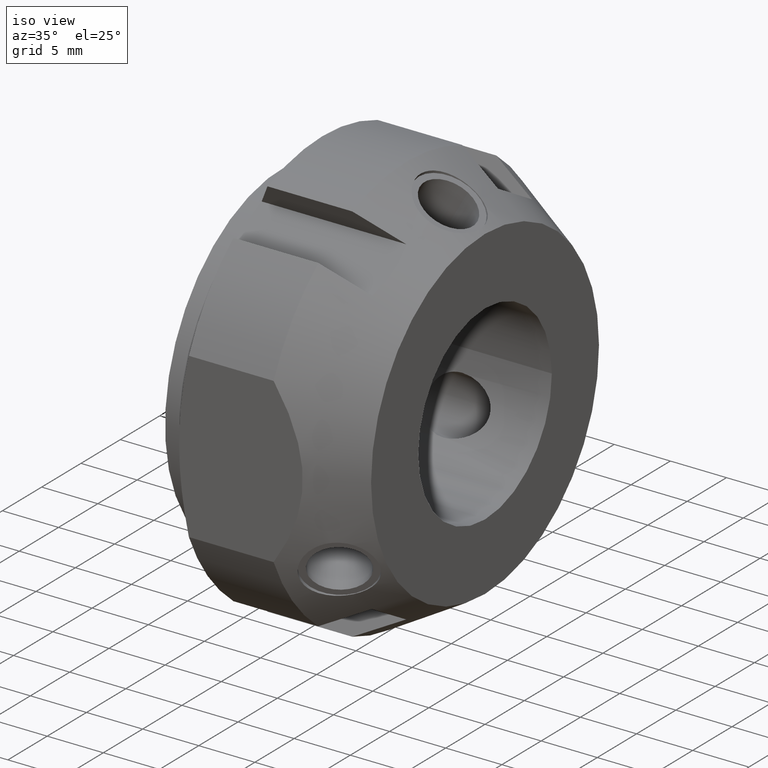
[diagram: clean part render]
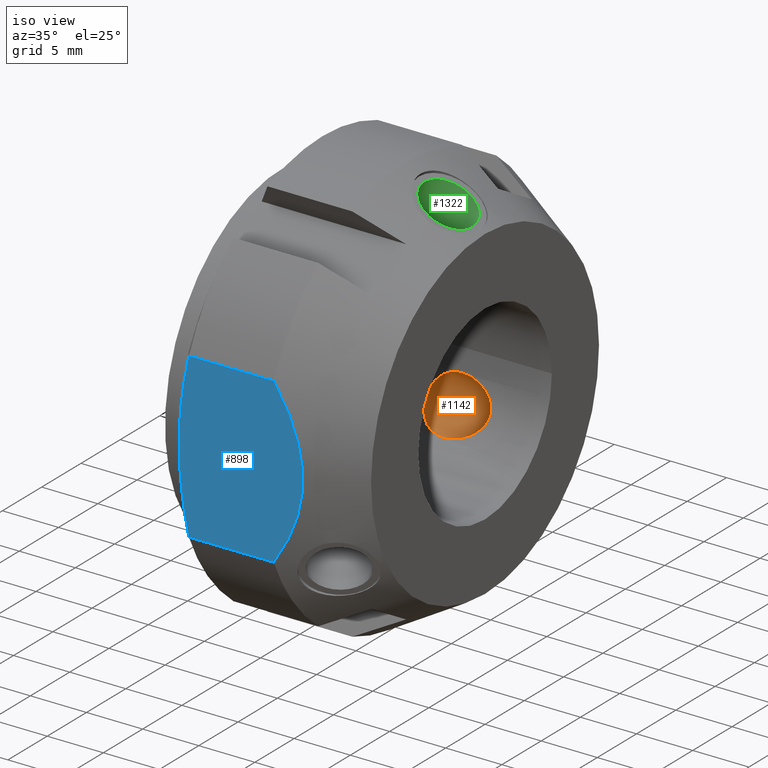
[diagram: same view with three faces highlighted in distinct colors, each labeled with its STEP entity id]
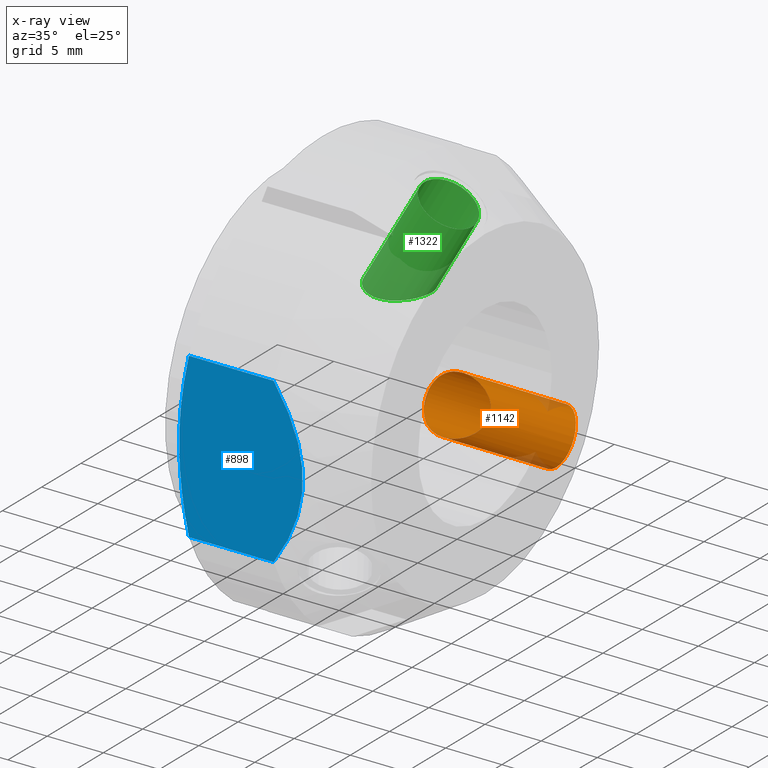
[diagram: x-ray of the same camera — body ghosted, the three highlighted faces saturated]
A machine part, iso view with three faces highlighted in distinct colors.
The next image is the same camera in x-ray (body ghosted, the three faces saturated) — at least one of them is partly hidden behind the body in this view.
Their STEP definitions:

[orange] entity #1142 — the highlighted cylindrical surface (bore or boss wall) has radius 2.4585 mm, axis along (0.5, 0.75, -0.433).
#1085=CARTESIAN_POINT('',(11.000000000000004,8.249999999999993,-4.763139720814413));
#1086=DIRECTION('',(0.500000000000001,0.75,-0.43301270189222));
#1087=DIRECTION('',(0.0,-0.5,-0.866025403784438));
#1088=AXIS2_PLACEMENT_3D('',#1085,#1086,#1087);
#1089=CYLINDRICAL_SURFACE('',#1088,2.458500000000001);
#1090=CARTESIAN_POINT('',(10.19772206322739,8.275833094841072,-1.939223191469521));
#1091=VERTEX_POINT('',#1090);
#1092=CARTESIAN_POINT('',(10.19772206322739,8.275833094841072,-1.939223191469521));
#1093=CARTESIAN_POINT('',(10.566782521427259,8.275833094841072,-1.939223191469521));
#1094=CARTESIAN_POINT('',(10.962081600355233,8.261028061994626,-2.005786967910295));
#1095=CARTESIAN_POINT('',(11.705961786118131,8.194076013932852,-2.263820724887133));
#1096=CARTESIAN_POINT('',(12.054709614364935,8.141230499570881,-2.454627902786858));
#1097=CARTESIAN_POINT('',(12.591244179149413,8.002528275847308,-2.872644468010111));
#1098=CARTESIAN_POINT('',(12.827707342353129,7.911826543730901,-3.121261528164622));
#1099=CARTESIAN_POINT('',(13.155873423945275,7.673136372763904,-3.669094198267247));
#1100=CARTESIAN_POINT('',(13.246308561717218,7.523761161316926,-3.968463404585669));
#1101=CARTESIAN_POINT('',(13.246308561717218,7.19867070301853,-4.531536595414341));
#1102=CARTESIAN_POINT('',(13.155873423945275,7.014096970959481,-4.810583926382305));
#1103=CARTESIAN_POINT('',(12.827707342353129,6.659005047111046,-5.29121201312469));
#1104=CARTESIAN_POINT('',(12.591244179149408,6.48904722326124,-5.494070547382002));
#1105=CARTESIAN_POINT('',(12.054709614364931,6.196385370436975,-5.823198479299635));
#1106=CARTESIAN_POINT('',(11.705961786118127,6.05756426433238,-5.964367626163021));
#1107=CARTESIAN_POINT('',(10.962081600355232,5.867576499787387,-6.151366679108332));
#1108=CARTESIAN_POINT('',(10.566782521427257,5.817333094841071,-6.197470101877607));
#1109=CARTESIAN_POINT('',(9.862931160561764,5.817333094841071,-6.197470101877607));
#1110=CARTESIAN_POINT('',(9.502410419975307,5.859572380618651,-6.15885675758594));
#1111=CARTESIAN_POINT('',(8.838116746098452,6.04082120746998,-5.981185764934129));
#1112=CARTESIAN_POINT('',(8.534553208944381,6.179572090433652,-5.841083031686245));
#1113=CARTESIAN_POINT('',(8.074640827506679,6.482428298801699,-5.502373639010703));
#1114=CARTESIAN_POINT('',(7.883280674191791,6.661278530855573,-5.288703724856601));
#1115=CARTESIAN_POINT('',(7.630536168855691,7.023189669213198,-4.797689588974992));
#1116=CARTESIAN_POINT('',(7.568646014506434,7.205360190837078,-4.519950062636005));
#1117=CARTESIAN_POINT('',(7.568646014506434,7.517071673498379,-3.980049937364004));
#1118=CARTESIAN_POINT('',(7.630536168855691,7.666515898131062,-3.683415874647569));
#1119=CARTESIAN_POINT('',(7.883280674191791,7.910791044242988,-3.124484566976518));
#1120=CARTESIAN_POINT('',(8.074640827506679,8.006409501897942,-2.862760765468071));
#1121=CARTESIAN_POINT('',(8.534553208944381,8.148312336271337,-2.431124898989737));
#1122=CARTESIAN_POINT('',(8.83811674609845,8.200269420921805,-2.240911742921734));
#1123=CARTESIAN_POINT('',(9.502410419975309,8.263512600648207,-1.99511015813645));
#1124=CARTESIAN_POINT('',(9.862931160561764,8.275833094841072,-1.939223191469521));
#1125=CARTESIAN_POINT('',(10.197722063227388,8.275833094841072,-1.939223191469521));
#1126=B_SPLINE_CURVE_WITH_KNOTS('',3,(#1092,#1093,#1094,#1095,#1096,#1097,#1098,#1099,#1100,#1101,#1102,#1103,#1104,#1105,#1106,#1107,#1108,#1109,#1110,#1111,#1112,#1113,#1114,#1115,#1116,#1117,#1118,#1119,#1120,#1121,#1122,#1123,#1124,#1125),.UNSPECIFIED.,.T.,.U.,(4,2,2,2,2,2,2,2,2,2,2,2,2,2,2,2,4),(0.0,0.11071813745996,0.22143627491992,0.318963412409439,0.416490549898958,0.514017687388476,0.611544824877995,0.722262962337955,0.832981099797915,0.933418370597602,1.033855641397288,1.127369086195679,1.22088253099407,1.31439597579246,1.407909420590851,1.508346691390538,1.608783962190225),.UNSPECIFIED.);
#1127=EDGE_CURVE('',#1091,#1091,#1126,.T.);
#1128=ORIENTED_EDGE('',*,*,#1127,.F.);
#1129=EDGE_LOOP('',(#1128));
#1130=FACE_OUTER_BOUND('',#1129,.T.);
#1131=CARTESIAN_POINT('',(14.750000000000007,12.645749999999989,-10.139858440210103));
#1132=VERTEX_POINT('',#1131);
#1133=CARTESIAN_POINT('',(14.750000000000007,13.874999999999989,-8.010734985006062));
#1134=DIRECTION('',(0.5,0.75,-0.43301270189222));
#1135=DIRECTION('',(0.0,-0.5,-0.866025403784438));
#1136=AXIS2_PLACEMENT_3D('',#1133,#1134,#1135);
#1137=CIRCLE('',#1136,2.458500000000001);
#1138=EDGE_CURVE('',#1132,#1132,#1137,.T.);
#1139=ORIENTED_EDGE('',*,*,#1138,.T.);
#1140=EDGE_LOOP('',(#1139));
#1141=FACE_BOUND('',#1140,.T.);
#1142=ADVANCED_FACE('',(#1130,#1141),#1089,.F.);

[blue] entity #898 — the highlighted planar face has unit normal (0, 1, 0).
#385=CARTESIAN_POINT('',(3.520725942163683,-17.000000000000043,-7.29725975966311));
#386=VERTEX_POINT('',#385);
#394=CARTESIAN_POINT('',(3.520725942163683,-17.000000000000046,7.297259759663092));
#395=VERTEX_POINT('',#394);
#396=CARTESIAN_POINT('',(3.520725942163682,-17.000000000000043,-7.297259759663106));
#397=CARTESIAN_POINT('',(1.858893410577381,-17.000000000000046,-5.596456E-015));
#398=CARTESIAN_POINT('',(3.520725942163683,-17.00000000000005,7.297259759663097));
#406=(BOUNDED_CURVE()B_SPLINE_CURVE(2,(#396,#397,#398),.UNSPECIFIED.,.F.,.U.)B_SPLINE_CURVE_WITH_KNOTS((3,3),(0.0,1.469693845669884),.UNSPECIFIED.)CURVE()GEOMETRIC_REPRESENTATION_ITEM()RATIONAL_B_SPLINE_CURVE((1.0,1.088235294117642,1.0))REPRESENTATION_ITEM(''));
#407=EDGE_CURVE('',#386,#395,#406,.T.);
#575=CARTESIAN_POINT('',(11.071796769724482,-17.000000000000043,-7.297259759663116));
#576=VERTEX_POINT('',#575);
#584=CARTESIAN_POINT('',(11.071796769724482,-17.000000000000043,-7.29725975966311));
#585=DIRECTION('',(-1.0,0.0,0.0));
#586=VECTOR('',#585,7.5510708275608);
#587=LINE('',#584,#586);
#588=EDGE_CURVE('',#576,#386,#587,.T.);
#826=CARTESIAN_POINT('',(11.071796769724482,-17.000000000000046,7.297259759663098));
#827=VERTEX_POINT('',#826);
#828=CARTESIAN_POINT('',(3.520725942163683,-17.000000000000046,7.297259759663092));
#829=DIRECTION('',(1.0,0.0,0.0));
#830=VECTOR('',#829,7.5510708275608);
#831=LINE('',#828,#830);
#832=EDGE_CURVE('',#395,#827,#831,.T.);
#875=CARTESIAN_POINT('',(0.0,-17.0,-100.0));
#876=DIRECTION('',(0.0,1.0,0.0));
#877=DIRECTION('',(0.0,0.0,1.0));
#878=AXIS2_PLACEMENT_3D('',#875,#876,#877);
#879=PLANE('',#878);
#880=ORIENTED_EDGE('',*,*,#407,.F.);
#881=ORIENTED_EDGE('',*,*,#588,.F.);
#882=CARTESIAN_POINT('',(11.071796769724482,-17.000000000000046,7.297259759663099));
#883=CARTESIAN_POINT('',(16.057294364483408,-17.000000000000043,-2.246655E-015));
#884=CARTESIAN_POINT('',(11.071796769724482,-17.000000000000043,-7.29725975966311));
#892=(BOUNDED_CURVE()B_SPLINE_CURVE(2,(#882,#883,#884),.UNSPECIFIED.,.F.,.U.)B_SPLINE_CURVE_WITH_KNOTS((3,3),(0.0,1.549193338482942),.UNSPECIFIED.)CURVE()GEOMETRIC_REPRESENTATION_ITEM()RATIONAL_B_SPLINE_CURVE((1.0,1.088235294117645,1.0))REPRESENTATION_ITEM(''));
#893=EDGE_CURVE('',#827,#576,#892,.T.);
#894=ORIENTED_EDGE('',*,*,#893,.F.);
#895=ORIENTED_EDGE('',*,*,#832,.F.);
#896=EDGE_LOOP('',(#880,#881,#894,#895));
#897=FACE_OUTER_BOUND('',#896,.T.);
#898=ADVANCED_FACE('',(#897),#879,.F.);

[green] entity #1322 — the highlighted cylindrical surface (bore or boss wall) has radius 2.4585 mm, axis along (0.5, 0, 0.866).
#1265=CARTESIAN_POINT('',(11.000000000000004,0.0,9.526279441628818));
#1266=DIRECTION('',(0.500000000000001,0.0,0.866025403784438));
#1267=DIRECTION('',(0.0,1.0,0.0));
#1268=AXIS2_PLACEMENT_3D('',#1265,#1266,#1267);
#1269=CYLINDRICAL_SURFACE('',#1268,2.4585);
#1270=CARTESIAN_POINT('',(10.19772206322739,-2.4585,8.13669329334712));
#1271=VERTEX_POINT('',#1270);
#1272=CARTESIAN_POINT('',(10.19772206322739,-2.4585,8.13669329334712));
#1273=CARTESIAN_POINT('',(10.580321489377273,-2.4585,8.13669329334712));
#1274=CARTESIAN_POINT('',(10.989305186086577,-2.388723340590231,8.15869233333849));
#1275=CARTESIAN_POINT('',(11.755547122492207,-2.114217582020967,8.234096418044647));
#1276=CARTESIAN_POINT('',(12.11300556933239,-1.909764672027273,8.286468529035954));
#1277=CARTESIAN_POINT('',(12.637487795251619,-1.46417466311787,8.375425445395141));
#1278=CARTESIAN_POINT('',(12.85812615310109,-1.2091078551013,8.41855082139347));
#1279=CARTESIAN_POINT('',(13.163157328525671,-0.633071143827736,8.481341975186869));
#1280=CARTESIAN_POINT('',(13.246308561717219,-0.311335292907467,8.5));
#1281=CARTESIAN_POINT('',(13.246308561717219,0.311335292907467,8.5));
#1282=CARTESIAN_POINT('',(13.163157328525671,0.633071143827736,8.481341975186869));
#1283=CARTESIAN_POINT('',(12.85812615310109,1.2091078551013,8.41855082139347));
#1284=CARTESIAN_POINT('',(12.637487795251619,1.46417466311787,8.375425445395141));
#1285=CARTESIAN_POINT('',(12.11300556933239,1.909764672027273,8.286468529035954));
#1286=CARTESIAN_POINT('',(11.755547122492207,2.114217582020967,8.234096418044647));
#1287=CARTESIAN_POINT('',(10.989305186086577,2.388723340590231,8.15869233333849));
#1288=CARTESIAN_POINT('',(10.580321489377273,2.4585,8.136693293347122));
#1289=CARTESIAN_POINT('',(9.857368847558458,2.4585,8.136693293347122));
#1290=CARTESIAN_POINT('',(9.491134316143512,2.402100793815131,8.154573262293782));
#1291=CARTESIAN_POINT('',(8.818280988051471,2.149727834991999,8.224708044710823));
#1292=CARTESIAN_POINT('',(8.511872617523139,1.95296911902824,8.276152319738793));
#1293=CARTESIAN_POINT('',(8.058148095358163,1.501890991161752,8.369103310514362));
#1294=CARTESIAN_POINT('',(7.872892195619149,1.230179449184187,8.415884925138414));
#1295=CARTESIAN_POINT('',(7.628374592051167,0.63226741322662,8.48178626602566));
#1296=CARTESIAN_POINT('',(7.568646014506435,0.306158428572324,8.5));
#1297=CARTESIAN_POINT('',(7.568646014506435,-0.311711482661301,8.5));
#1298=CARTESIAN_POINT('',(7.630536168855693,-0.643326228917862,8.481105463622555));
#1299=CARTESIAN_POINT('',(7.883280674191793,-1.249512513387411,8.413188291833114));
#1300=CARTESIAN_POINT('',(8.074640827506679,-1.52398120309624,8.365134404478766));
#1301=CARTESIAN_POINT('',(8.534553208944381,-1.968740245837683,8.272207930675975));
#1302=CARTESIAN_POINT('',(8.838116746098452,-2.159448213451821,8.222097507855857));
#1303=CARTESIAN_POINT('',(9.502410419975311,-2.403940220029553,8.153966915722384));
#1304=CARTESIAN_POINT('',(9.862931160561768,-2.4585,8.13669329334712));
#1305=CARTESIAN_POINT('',(10.19772206322739,-2.4585,8.13669329334712));
#1306=B_SPLINE_CURVE_WITH_KNOTS('',3,(#1272,#1273,#1274,#1275,#1276,#1277,#1278,#1279,#1280,#1281,#1282,#1283,#1284,#1285,#1286,#1287,#1288,#1289,#1290,#1291,#1292,#1293,#1294,#1295,#1296,#1297,#1298,#1299,#1300,#1301,#1302,#1303,#1304,#1305),.UNSPECIFIED.,.T.,.U.,(4,2,2,2,2,2,2,2,2,2,2,2,2,2,2,2,4),(0.0,0.114779827844965,0.22955965568993,0.32296024356217,0.41636083143441,0.50976141930665,0.603162007178891,0.717941835023856,0.832721662868821,0.9348276275695,1.036933592270179,1.128781120841877,1.220628649413573,1.314142094211964,1.407655539010355,1.508092809810041,1.608530080609728),.UNSPECIFIED.);
#1307=EDGE_CURVE('',#1271,#1271,#1306,.T.);
#1308=ORIENTED_EDGE('',*,*,#1307,.F.);
#1309=EDGE_LOOP('',(#1308));
#1310=FACE_OUTER_BOUND('',#1309,.T.);
#1311=CARTESIAN_POINT('',(14.750000000000007,2.4585,16.021469970012106));
#1312=VERTEX_POINT('',#1311);
#1313=CARTESIAN_POINT('',(14.750000000000007,0.0,16.021469970012106));
#1314=DIRECTION('',(-0.500000000000001,0.0,-0.866025403784438));
#1315=DIRECTION('',(0.0,1.0,0.0));
#1316=AXIS2_PLACEMENT_3D('',#1313,#1314,#1315);
#1317=CIRCLE('',#1316,2.4585);
#1318=EDGE_CURVE('',#1312,#1312,#1317,.T.);
#1319=ORIENTED_EDGE('',*,*,#1318,.F.);
#1320=EDGE_LOOP('',(#1319));
#1321=FACE_BOUND('',#1320,.T.);
#1322=ADVANCED_FACE('',(#1310,#1321),#1269,.F.);